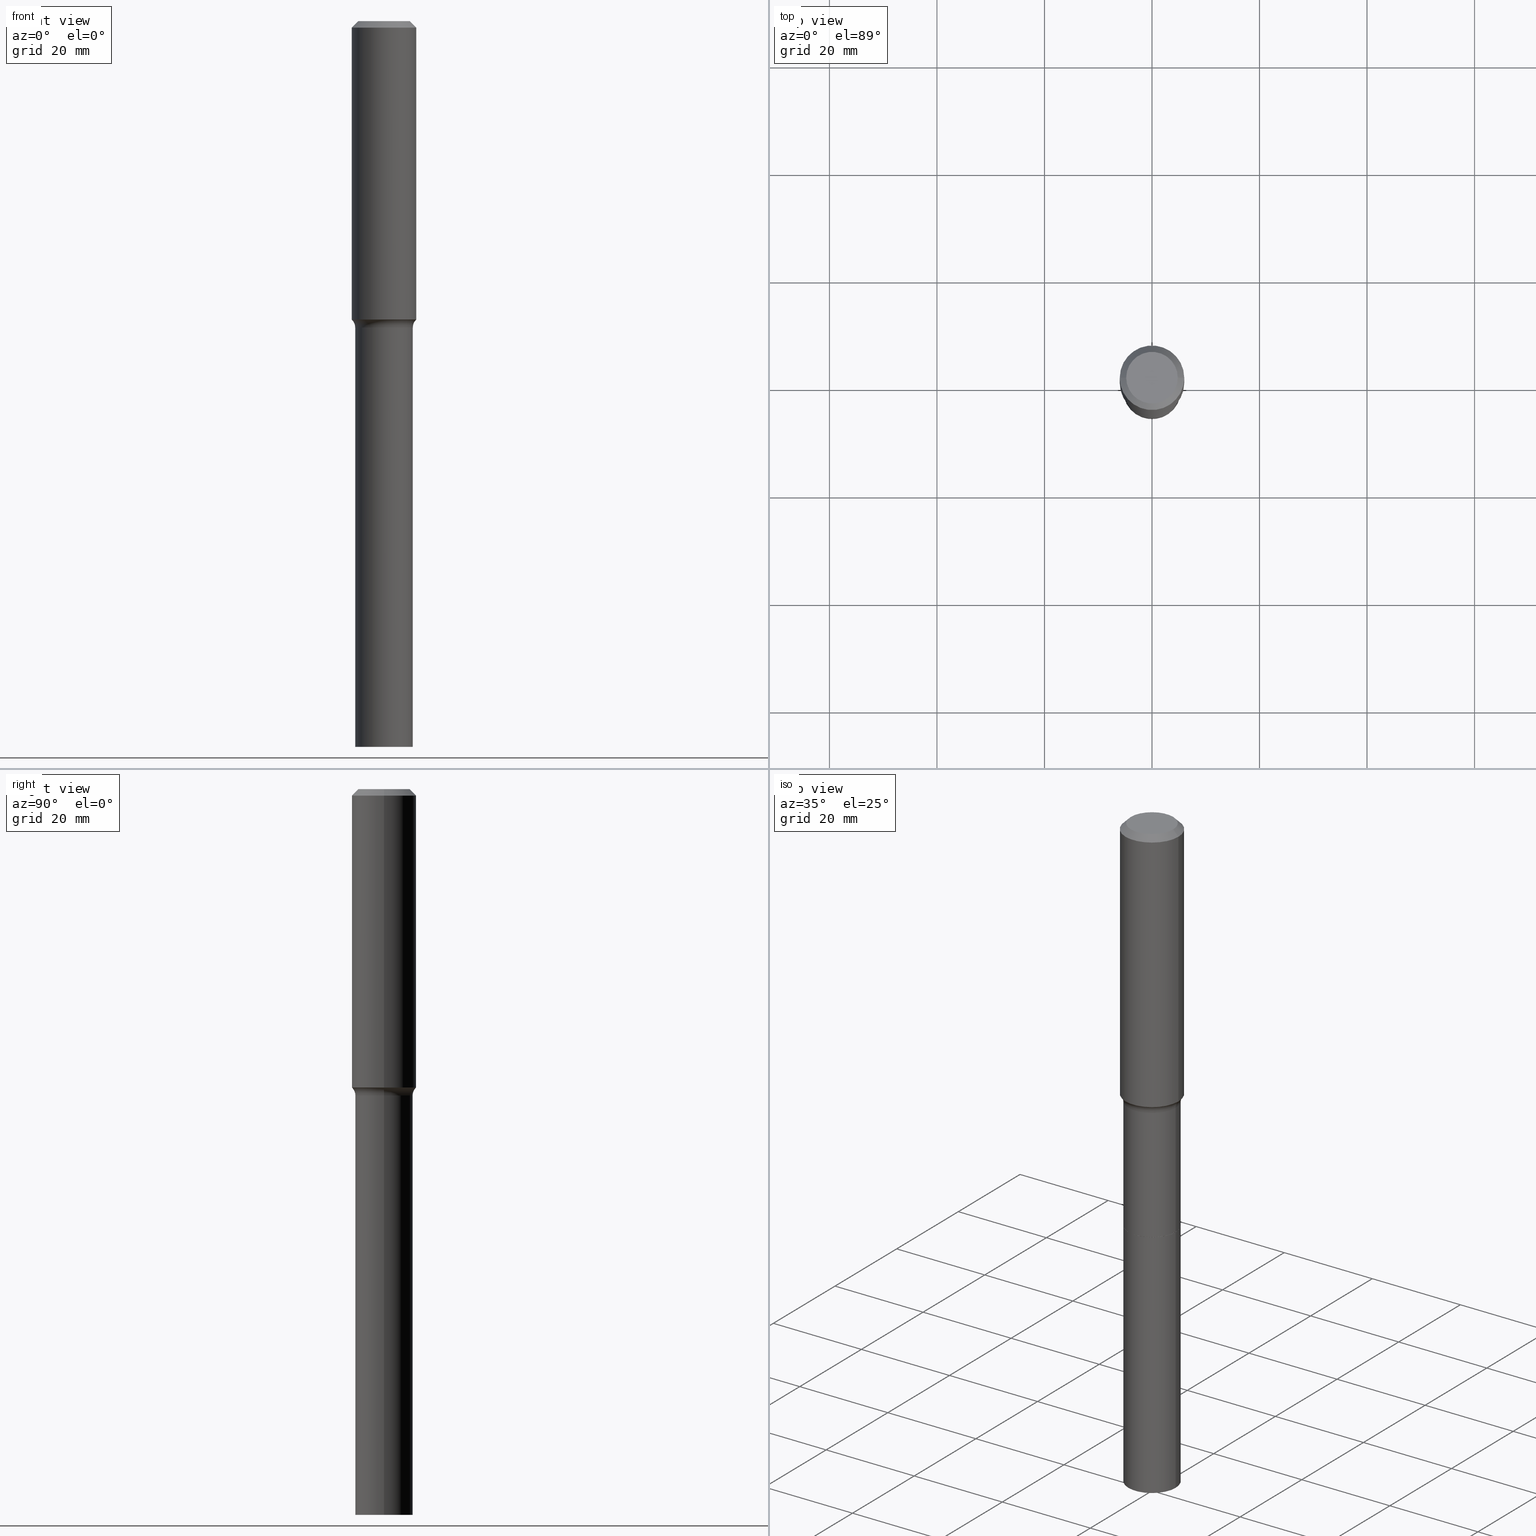
[diagram: canonical four-view strip — front | top / right | iso, engineering-drawing reading convention]
A machine part, canonical four-view strip (front | top / right | iso — engineering-drawing reading convention). The complete STEP part file that produces these views, byte-faithful:
ISO-10303-21;
HEADER;
FILE_DESCRIPTION (( 'STEP AP203' ),
    '1' );
FILE_NAME ('58906.STEP',
    '2025-04-01T15:26:47',
    ( '' ),
    ( '' ),
    'SwSTEP 2.0',
    'SolidWorks 2024',
    '' );
FILE_SCHEMA (( 'CONFIG_CONTROL_DESIGN' ));
ENDSEC;

DATA;
#1 = VERTEX_POINT ( 'NONE', #152 ) ;
#2 = DIRECTION ( 'NONE',  ( 2.445468806185136597E-29, -3.491481338843145583E-15, -1.000000000000000000 ) ) ;
#3 = DIRECTION ( 'NONE',  ( -1.000000000000000000, 6.982962677686266711E-15, 0.000000000000000000 ) ) ;
#4 = PRODUCT_DEFINITION_SHAPE ( 'NONE', 'NONE',  #20 ) ;
#5 = ADVANCED_FACE ( 'NONE', ( #112 ), #422, .F. ) ;
#6 = VERTEX_POINT ( 'NONE', #273 ) ;
#7 = EDGE_CURVE ( 'NONE', #82, #421, #455, .T. ) ;
#8 = CIRCLE ( 'NONE', #137, 0.2104499999999999982 ) ;
#9 = APPROVAL_ROLE ( '' ) ;
#10 = DATE_AND_TIME ( #134, #444 ) ;
#11 = CARTESIAN_POINT ( 'NONE',  ( -0.2361999999999999933, 1.484438206022545019E-15, -0.04724000000000028870 ) ) ;
#12 = CALENDAR_DATE ( 2025, 1, 4 ) ;
#13 = AXIS2_PLACEMENT_3D ( 'NONE', #364, #222, #374 ) ;
#14 = CIRCLE ( 'NONE', #376, 0.2361999999999999933 ) ;
#15 = CARTESIAN_POINT ( 'NONE',  ( 7.942882682489324976E-29, -1.134033138856253841E-14, -3.248000000000000220 ) ) ;
#16 = ORIENTED_EDGE ( 'NONE', *, *, #288, .T. ) ;
#17 = PERSON_AND_ORGANIZATION_ROLE ( 'design_owner' ) ;
#18 = CARTESIAN_POINT ( 'NONE',  ( -4.713871149261273121E-47, 6.730158695841826722E-33, 1.927594061857931128E-18 ) ) ;
#19 = APPROVAL_PERSON_ORGANIZATION ( #407, #357, #330 ) ;
#20 = PRODUCT_DEFINITION ( 'UNKNOWN', '', #401, #135 ) ;
#21 = ADVANCED_FACE ( 'NONE', ( #205 ), #303, .T. ) ;
#22 = CARTESIAN_POINT ( 'NONE',  ( 5.354207543847266757E-29, -7.644389360581631556E-15, -2.189440131195000472 ) ) ;
#23 = EDGE_CURVE ( 'NONE', #517, #156, #272, .T. ) ;
#24 = CARTESIAN_POINT ( 'NONE',  ( 0.1889600000000000168, -1.540873453589747738E-15, 3.855188123725863225E-18 ) ) ;
#25 = CIRCLE ( 'NONE', #256, 0.2109500000000003594 ) ;
#26 = FACE_OUTER_BOUND ( 'NONE', #264, .T. ) ;
#27 = DIRECTION ( 'NONE',  ( 1.000000000000000000, -6.982962677686270655E-15, 0.000000000000000000 ) ) ;
#28 = LOCAL_TIME ( 11, 26, 47.00000000000000000, #373 ) ;
#29 = DIRECTION ( 'NONE',  ( 1.000000000000000000, -6.982962677686266711E-15, 4.876176775795935793E-29 ) ) ;
#30 = VERTEX_POINT ( 'NONE', #86 ) ;
#31 = DIRECTION ( 'NONE',  ( -2.445468806185136597E-29, 3.491481338843145583E-15, 1.000000000000000000 ) ) ;
#32 = CARTESIAN_POINT ( 'NONE',  ( 1.155239464041865682E-30, -1.649375784469512105E-16, -0.04724000000000028870 ) ) ;
#33 = ORIENTED_EDGE ( 'NONE', *, *, #252, .F. ) ;
#34 = DIRECTION ( 'NONE',  ( 1.000000000000000000, -6.982962677686266711E-15, 0.000000000000000000 ) ) ;
#35 = DIRECTION ( 'NONE',  ( 1.000000000000000000, -6.982962677686266711E-15, 4.876176775795935793E-29 ) ) ;
#36 = AXIS2_PLACEMENT_3D ( 'NONE', #503, #307, #291 ) ;
#37 = EDGE_LOOP ( 'NONE', ( #103, #220, #493, #448 ) ) ;
#38 = APPROVAL_ROLE ( '' ) ;
#39 = DIRECTION ( 'NONE',  ( -2.445468806185136597E-29, 3.491481338843145583E-15, 1.000000000000000000 ) ) ;
#40 = CARTESIAN_POINT ( 'NONE',  ( 0.2109499999999998598, -9.307940101221936393E-15, -2.244000000000000217 ) ) ;
#41 = TOROIDAL_SURFACE ( 'NONE', #128, 0.2909499999999998754, 0.08000000000000002942 ) ;
#42 = CARTESIAN_POINT ( 'NONE',  ( 5.487632001079447088E-29, -7.834884124364020406E-15, -2.244000000000000217 ) ) ;
#43 = LOCAL_TIME ( 11, 26, 47.00000000000000000, #300 ) ;
#44 = ADVANCED_FACE ( 'NONE', ( #155 ), #347, .T. ) ;
#45 = EDGE_LOOP ( 'NONE', ( #289, #317, #212, #431 ) ) ;
#46 = CARTESIAN_POINT ( 'NONE',  ( 5.344351621851142965E-29, -7.630317716061153724E-15, -2.185409852022681676 ) ) ;
#47 = EDGE_LOOP ( 'NONE', ( #169, #217 ) ) ;
#48 = CIRCLE ( 'NONE', #339, 0.2362000000000002709 ) ;
#49 = DIRECTION ( 'NONE',  ( -0.6819983600624854869, 7.399397606724237667E-15, 0.7313537016191825613 ) ) ;
#50 =( NAMED_UNIT ( * ) SI_UNIT ( $, .STERADIAN. ) SOLID_ANGLE_UNIT ( ) );
#51 = VERTEX_POINT ( 'NONE', #356 ) ;
#52 = MANIFOLD_SOLID_BREP ( 'Body-Move/Copy2[2]', #213 ) ;
#53 = PERSON_AND_ORGANIZATION ( #150, #305 ) ;
#54 = ORIENTED_EDGE ( 'NONE', *, *, #318, .T. ) ;
#55 = CYLINDRICAL_SURFACE ( 'NONE', #260, 0.2109500000000001652 ) ;
#56 = DIRECTION ( 'NONE',  ( -2.445468806185136877E-29, 3.491481338843145188E-15, 1.000000000000000000 ) ) ;
#57 = VECTOR ( 'NONE', #188, 39.37007874015748143 ) ;
#58 = MECHANICAL_CONTEXT ( 'NONE', #93, 'mechanical' ) ;
#59 = AXIS2_PLACEMENT_3D ( 'NONE', #335, #296, #186 ) ;
#60 = EDGE_CURVE ( 'NONE', #1, #123, #309, .T. ) ;
#61 = EDGE_CURVE ( 'NONE', #518, #6, #338, .T. ) ;
#62 = DIRECTION ( 'NONE',  ( -2.445468806185136597E-29, 3.491481338843145583E-15, 1.000000000000000000 ) ) ;
#63 = CARTESIAN_POINT ( 'NONE',  ( -0.2324417038704665595, -5.992791718853027587E-15, -2.189440131195000472 ) ) ;
#64 = DIRECTION ( 'NONE',  ( 2.438088387897960049E-29, -3.491481338843145188E-15, -1.000000000000000000 ) ) ;
#65 = APPLICATION_CONTEXT ( 'configuration controlled 3d designs of mechanical parts and assemblies' ) ;
#66 = CONICAL_SURFACE ( 'NONE', #275, 0.2361999999999999933, 0.7853981633974452814 ) ;
#67 = ADVANCED_FACE ( 'NONE', ( #248 ), #462, .T. ) ;
#68 = CARTESIAN_POINT ( 'NONE',  ( 0.2109499999999999986, -1.281338736542045598E-14, -3.248000000000000220 ) ) ;
#69 = ORIENTED_EDGE ( 'NONE', *, *, #359, .T. ) ;
#70 = DIRECTION ( 'NONE',  ( -2.445468806185136597E-29, 3.491481338843145583E-15, 1.000000000000000000 ) ) ;
#71 = APPROVAL_PERSON_ORGANIZATION ( #392, #445, #38 ) ;
#72 = CARTESIAN_POINT ( 'NONE',  ( 7.941659948086232174E-29, -1.133858564789311612E-14, -3.247500000000000053 ) ) ;
#73 = PRODUCT_RELATED_PRODUCT_CATEGORY ( 'detail', '', ( #76 ) ) ;
#74 = CARTESIAN_POINT ( 'NONE',  ( 7.942882682489324976E-29, -1.134033138856253841E-14, -3.248000000000000220 ) ) ;
#75 = VERTEX_POINT ( 'NONE', #68 ) ;
#76 = PRODUCT ( '58906', '58906', '', ( #58 ) ) ;
#77 = DIRECTION ( 'NONE',  ( 1.000000000000000000, -6.982962677686266711E-15, 4.876176775795936353E-29 ) ) ;
#78 = VERTEX_POINT ( 'NONE', #63 ) ;
#79 = DATE_TIME_ROLE ( 'classification_date' ) ;
#80 = TOROIDAL_SURFACE ( 'NONE', #411, 0.2909499999999998754, 0.08000000000000002942 ) ;
#81 = ORIENTED_EDGE ( 'NONE', *, *, #353, .F. ) ;
#82 = VERTEX_POINT ( 'NONE', #24 ) ;
#83 = APPROVAL_DATE_TIME ( #312, #445 ) ;
#84 = DIRECTION ( 'NONE',  ( -2.445468806185136877E-29, 3.491481338843145188E-15, 1.000000000000000000 ) ) ;
#85 = ORIENTED_EDGE ( 'NONE', *, *, #424, .F. ) ;
#86 = CARTESIAN_POINT ( 'NONE',  ( 0.2109500000000003594, -2.003027929280924361E-14, -5.315000000000000391 ) ) ;
#87 = CC_DESIGN_PERSON_AND_ORGANIZATION_ASSIGNMENT ( #53, #224, ( #401 ) ) ;
#88 = AXIS2_PLACEMENT_3D ( 'NONE', #191, #507, #29 ) ;
#89 = ADVANCED_FACE ( 'NONE', ( #321 ), #390, .F. ) ;
#90 = DIRECTION ( 'NONE',  ( -2.445468806185136597E-29, 3.491481338843145583E-15, 1.000000000000000000 ) ) ;
#91 = DIRECTION ( 'NONE',  ( -2.445468806185136597E-29, 3.491481338843145583E-15, 1.000000000000000000 ) ) ;
#92 = AXIS2_PLACEMENT_3D ( 'NONE', #22, #419, #271 ) ;
#93 = APPLICATION_CONTEXT ( 'configuration controlled 3d designs of mechanical parts and assemblies' ) ;
#94 = VERTEX_POINT ( 'NONE', #420 ) ;
#95 =( CONVERSION_BASED_UNIT ( 'INCH', #447 ) LENGTH_UNIT ( ) NAMED_UNIT ( #298 ) );
#96 = AXIS2_PLACEMENT_3D ( 'NONE', #15, #255, #177 ) ;
#97 = ORIENTED_EDGE ( 'NONE', *, *, #124, .T. ) ;
#98 = LOCAL_TIME ( 11, 26, 47.00000000000000000, #142 ) ;
#99 = DIRECTION ( 'NONE',  ( -6.982962677686266711E-15, -1.000000000000000000, 3.491481338843145583E-15 ) ) ;
#100 = ORIENTED_EDGE ( 'NONE', *, *, #438, .T. ) ;
#101 = PERSON_AND_ORGANIZATION_ROLE ( 'creator' ) ;
#102 = EDGE_LOOP ( 'NONE', ( #326, #388, #280, #471 ) ) ;
#103 = ORIENTED_EDGE ( 'NONE', *, *, #7, .F. ) ;
#104 = DIRECTION ( 'NONE',  ( 1.000000000000000000, -6.982962677686269077E-15, 0.000000000000000000 ) ) ;
#105 = CALENDAR_DATE ( 2025, 1, 4 ) ;
#106 = ADVANCED_FACE ( 'NONE', ( #26 ), #240, .T. ) ;
#107 = EDGE_CURVE ( 'NONE', #197, #259, #14, .T. ) ;
#108 = VECTOR ( 'NONE', #394, 39.37007874015748143 ) ;
#109 = FACE_OUTER_BOUND ( 'NONE', #45, .T. ) ;
#110 = AXIS2_PLACEMENT_3D ( 'NONE', #341, #153, #27 ) ;
#111 = DIRECTION ( 'NONE',  ( 1.000000000000000000, -6.982962677686266711E-15, 0.000000000000000000 ) ) ;
#112 = FACE_OUTER_BOUND ( 'NONE', #47, .T. ) ;
#113 = AXIS2_PLACEMENT_3D ( 'NONE', #122, #70, #472 ) ;
#114 = DIRECTION ( 'NONE',  ( 1.000000000000000000, -6.982962677686266711E-15, 4.876176775795936353E-29 ) ) ;
#115 = DIRECTION ( 'NONE',  ( -1.000000000000000000, 6.982962677686265922E-15, -4.876176775795935793E-29 ) ) ;
#116 = AXIS2_PLACEMENT_3D ( 'NONE', #285, #458, #115 ) ;
#117 = CARTESIAN_POINT ( 'NONE',  ( -0.1889600000000000168, 1.401969416799070942E-15, 3.855188123706346622E-18 ) ) ;
#118 = DIRECTION ( 'NONE',  ( -0.7071067811864267805, 7.493145998869918709E-15, 0.7071067811866682540 ) ) ;
#119 = ORIENTED_EDGE ( 'NONE', *, *, #429, .T. ) ;
#120 = DIRECTION ( 'NONE',  ( -2.445468806185136597E-29, 3.491481338843145583E-15, 1.000000000000000000 ) ) ;
#121 = ORIENTED_EDGE ( 'NONE', *, *, #254, .T. ) ;
#122 = CARTESIAN_POINT ( 'NONE',  ( 5.354207543847266757E-29, -7.644389360581631556E-15, -2.189440131195000472 ) ) ;
#123 = VERTEX_POINT ( 'NONE', #40 ) ;
#124 = EDGE_CURVE ( 'NONE', #421, #82, #158, .T. ) ;
#125 = ADVANCED_FACE ( 'NONE', ( #196 ), #268, .T. ) ;
#126 = ORIENTED_EDGE ( 'NONE', *, *, #143, .T. ) ;
#127 = AXIS2_PLACEMENT_3D ( 'NONE', #278, #415, #3 ) ;
#128 = AXIS2_PLACEMENT_3D ( 'NONE', #489, #478, #244 ) ;
#129 = ORIENTED_EDGE ( 'NONE', *, *, #165, .F. ) ;
#130 = CARTESIAN_POINT ( 'NONE',  ( -0.2909499999999998754, -5.767560034670008617E-15, -2.244000000000000217 ) ) ;
#131 = CARTESIAN_POINT ( 'NONE',  ( 0.2361999999999999933, -1.785387205520586782E-15, -0.04724000000000028870 ) ) ;
#132 = CARTESIAN_POINT ( 'NONE',  ( 5.344351621851142965E-29, -7.630317716061153724E-15, -2.185409852022681676 ) ) ;
#133 = SECURITY_CLASSIFICATION ( '', '', #377 ) ;
#134 = CALENDAR_DATE ( 2025, 1, 4 ) ;
#135 = DESIGN_CONTEXT ( 'detailed design', #65, 'design' ) ;
#136 = APPROVAL_DATE_TIME ( #10, #297 ) ;
#137 = AXIS2_PLACEMENT_3D ( 'NONE', #360, #245, #322 ) ;
#138 = CLOSED_SHELL ( 'NONE', ( #486, #199, #504, #5 ) ) ;
#139 = EDGE_LOOP ( 'NONE', ( #223, #365, #452, #274 ) ) ;
#140 = PERSON_AND_ORGANIZATION ( #150, #305 ) ;
#141 = EDGE_CURVE ( 'NONE', #82, #259, #279, .T. ) ;
#142 = COORDINATED_UNIVERSAL_TIME_OFFSET ( 5, 0, .BEHIND. ) ;
#143 = EDGE_CURVE ( 'NONE', #30, #194, #242, .T. ) ;
#144 = CARTESIAN_POINT ( 'NONE',  ( -0.2109499999999998598, -8.087844985042637127E-15, -2.244000000000000217 ) ) ;
#145 = DIRECTION ( 'NONE',  ( -1.000000000000000000, 6.982962677686265922E-15, -4.876176775795935793E-29 ) ) ;
#146 = VECTOR ( 'NONE', #56, 39.37007874015748143 ) ;
#147 = CYLINDRICAL_SURFACE ( 'NONE', #495, 0.2109499999999999431 ) ;
#148 = DIRECTION ( 'NONE',  ( -2.445468806185136597E-29, 3.491481338843145583E-15, 1.000000000000000000 ) ) ;
#149 = CARTESIAN_POINT ( 'NONE',  ( 7.942882682489324976E-29, -1.134033138856253841E-14, -3.248000000000000220 ) ) ;
#150 = PERSON ( 'UNSPECIFIED', 'UNSPECIFIED', 'UNSPECIFIED', ('UNSPECIFIED'), ('UNSPECIFIED'), ('UNSPECIFIED') ) ;
#151 = CARTESIAN_POINT ( 'NONE',  ( 7.942882682489324976E-29, -1.134033138856253841E-14, -3.248000000000000220 ) ) ;
#152 = CARTESIAN_POINT ( 'NONE',  ( 0.2109499999999999986, -1.281164162475103368E-14, -3.247500000000000053 ) ) ;
#153 = DIRECTION ( 'NONE',  ( -2.445468806185136597E-29, 3.491481338843145583E-15, 1.000000000000000000 ) ) ;
#154 = CARTESIAN_POINT ( 'NONE',  ( 0.000000000000000000, 0.000000000000000000, 0.000000000000000000 ) ) ;
#155 = FACE_OUTER_BOUND ( 'NONE', #423, .T. ) ;
#156 = VERTEX_POINT ( 'NONE', #487 ) ;
#157 = FACE_OUTER_BOUND ( 'NONE', #316, .T. ) ;
#158 = CIRCLE ( 'NONE', #434, 0.1889600000000000168 ) ;
#159 = DIRECTION ( 'NONE',  ( -2.445468806185136597E-29, 3.491481338843145583E-15, 1.000000000000000000 ) ) ;
#160 = CARTESIAN_POINT ( 'NONE',  ( 5.354207543847266757E-29, -7.644389360581631556E-15, -2.189440131195000472 ) ) ;
#161 = CARTESIAN_POINT ( 'NONE',  ( -0.2109500000000001652, -9.841441487476605698E-15, -3.248000000000000220 ) ) ;
#162 = AXIS2_PLACEMENT_3D ( 'NONE', #425, #457, #111 ) ;
#163 = CC_DESIGN_PERSON_AND_ORGANIZATION_ASSIGNMENT ( #179, #263, ( #20 ) ) ;
#164 = LINE ( 'NONE', #337, #386 ) ;
#165 = EDGE_CURVE ( 'NONE', #517, #123, #476, .T. ) ;
#166 = ORIENTED_EDGE ( 'NONE', *, *, #336, .F. ) ;
#167 = EDGE_CURVE ( 'NONE', #421, #197, #287, .T. ) ;
#168 = DATE_AND_TIME ( #105, #98 ) ;
#169 = ORIENTED_EDGE ( 'NONE', *, *, #469, .T. ) ;
#170 = DIRECTION ( 'NONE',  ( -2.445468806185136597E-29, 3.491481338843145583E-15, 1.000000000000000000 ) ) ;
#171 = CIRCLE ( 'NONE', #505, 0.2109499999999998598 ) ;
#172 = DIRECTION ( 'NONE',  ( -2.445468806185136877E-29, 3.491481338843145188E-15, 1.000000000000000000 ) ) ;
#173 = CC_DESIGN_PERSON_AND_ORGANIZATION_ASSIGNMENT ( #332, #497, ( #133 ) ) ;
#174 = CARTESIAN_POINT ( 'NONE',  ( -0.2362000000000001321, 1.678301941865357577E-15, -1.161852468318209457E-29 ) ) ;
#175 = ORIENTED_EDGE ( 'NONE', *, *, #23, .T. ) ;
#176 = CARTESIAN_POINT ( 'NONE',  ( -0.2361999999999999933, -2.219325705388693953E-15, -0.04724000000000028870 ) ) ;
#177 = DIRECTION ( 'NONE',  ( 1.000000000000000000, -6.982962677686266711E-15, 0.000000000000000000 ) ) ;
#178 = FACE_OUTER_BOUND ( 'NONE', #257, .T. ) ;
#179 = PERSON_AND_ORGANIZATION ( #150, #305 ) ;
#180 = APPROVAL_STATUS ( 'not_yet_approved' ) ;
#181 = ORIENTED_EDGE ( 'NONE', *, *, #318, .F. ) ;
#182 = PERSON_AND_ORGANIZATION ( #150, #305 ) ;
#183 = VECTOR ( 'NONE', #118, 39.37007874015748143 ) ;
#184 = ADVANCED_FACE ( 'NONE', ( #295 ), #80, .F. ) ;
#185 = AXIS2_PLACEMENT_3D ( 'NONE', #72, #159, #239 ) ;
#186 = DIRECTION ( 'NONE',  ( 1.000000000000000000, 0.000000000000000000, 0.000000000000000000 ) ) ;
#187 = CARTESIAN_POINT ( 'NONE',  ( 0.2109500000000001652, -1.281338736542045913E-14, -3.248000000000000220 ) ) ;
#188 = DIRECTION ( 'NONE',  ( 0.7071067811865453523, -7.319954787623248157E-15, -0.7071067811865496822 ) ) ;
#189 = DIRECTION ( 'NONE',  ( -2.445468806185136597E-29, 3.491481338843145583E-15, 1.000000000000000000 ) ) ;
#190 = AXIS2_PLACEMENT_3D ( 'NONE', #130, #328, #283 ) ;
#191 = CARTESIAN_POINT ( 'NONE',  ( 0.000000000000000000, 0.000000000000000000, 0.000000000000000000 ) ) ;
#192 = CYLINDRICAL_SURFACE ( 'NONE', #110, 0.2109500000000001652 ) ;
#193 = DIRECTION ( 'NONE',  ( 1.000000000000000000, -6.982962677686266711E-15, 0.000000000000000000 ) ) ;
#194 = VERTEX_POINT ( 'NONE', #441 ) ;
#195 = DIRECTION ( 'NONE',  ( 1.000000000000000000, -6.982962677686269077E-15, 0.000000000000000000 ) ) ;
#196 = FACE_OUTER_BOUND ( 'NONE', #440, .T. ) ;
#197 = VERTEX_POINT ( 'NONE', #176 ) ;
#198 = VECTOR ( 'NONE', #172, 39.37007874015748143 ) ;
#199 = ADVANCED_FACE ( 'NONE', ( #250 ), #209, .T. ) ;
#200 = EDGE_CURVE ( 'NONE', #51, #75, #325, .T. ) ;
#201 = ORIENTED_EDGE ( 'NONE', *, *, #408, .F. ) ;
#202 = ORIENTED_EDGE ( 'NONE', *, *, #277, .F. ) ;
#203 = CONICAL_SURFACE ( 'NONE', #113, 0.2324417038704666982, 0.7504915783575439869 ) ;
#204 = SHAPE_DEFINITION_REPRESENTATION ( #4, #473 ) ;
#205 = FACE_OUTER_BOUND ( 'NONE', #139, .T. ) ;
#206 = LINE ( 'NONE', #208, #225 ) ;
#207 = DIRECTION ( 'NONE',  ( 1.000000000000000000, -6.982962677686257244E-15, 0.000000000000000000 ) ) ;
#208 = CARTESIAN_POINT ( 'NONE',  ( -0.2324417038704666982, -5.992791718853027587E-15, -2.189440131195000472 ) ) ;
#209 = PLANE ( 'NONE',  #13 ) ;
#210 = ORIENTED_EDGE ( 'NONE', *, *, #61, .T. ) ;
#211 = DIRECTION ( 'NONE',  ( 1.000000000000000000, -6.982962677686265133E-15, 0.000000000000000000 ) ) ;
#212 = ORIENTED_EDGE ( 'NONE', *, *, #424, .T. ) ;
#213 = CLOSED_SHELL ( 'NONE', ( #67, #238, #44, #380, #324, #106, #446, #184, #125, #439, #21, #492, #89, #484 ) ) ;
#214 = EDGE_CURVE ( 'NONE', #78, #94, #206, .T. ) ;
#215 = CIRCLE ( 'NONE', #491, 0.2109499999999999986 ) ;
#216 = FACE_OUTER_BOUND ( 'NONE', #37, .T. ) ;
#217 = ORIENTED_EDGE ( 'NONE', *, *, #200, .T. ) ;
#218 = AXIS2_PLACEMENT_3D ( 'NONE', #18, #64, #145 ) ;
#219 = APPROVAL_STATUS ( 'not_yet_approved' ) ;
#220 = ORIENTED_EDGE ( 'NONE', *, *, #141, .T. ) ;
#221 = LINE ( 'NONE', #227, #266 ) ;
#222 = DIRECTION ( 'NONE',  ( 2.438088387897960049E-29, -3.491481338843145188E-15, -1.000000000000000000 ) ) ;
#223 = ORIENTED_EDGE ( 'NONE', *, *, #141, .F. ) ;
#224 = PERSON_AND_ORGANIZATION_ROLE ( 'design_supplier' ) ;
#225 = VECTOR ( 'NONE', #49, 39.37007874015748143 ) ;
#226 = DIRECTION ( 'NONE',  ( -2.445468806185136597E-29, 3.491481338843145583E-15, 1.000000000000000000 ) ) ;
#227 = CARTESIAN_POINT ( 'NONE',  ( 0.2362000000000001321, -1.649375784469497117E-15, 1.151752954443000789E-29 ) ) ;
#228 = EDGE_CURVE ( 'NONE', #94, #156, #454, .T. ) ;
#229 = DIRECTION ( 'NONE',  ( -2.445468806185136597E-29, 3.491481338843145583E-15, 1.000000000000000000 ) ) ;
#230 = CARTESIAN_POINT ( 'NONE',  ( 0.000000000000000000, 0.000000000000000000, 0.000000000000000000 ) ) ;
#231 = EDGE_LOOP ( 'NONE', ( #237, #166 ) ) ;
#232 = AXIS2_PLACEMENT_3D ( 'NONE', #154, #31, #114 ) ;
#233 = CARTESIAN_POINT ( 'NONE',  ( 5.487632001079447088E-29, -7.834884124364020406E-15, -2.244000000000000217 ) ) ;
#234 = MANIFOLD_SOLID_BREP ( 'Body-Move/Copy2[1]', #138 ) ;
#235 = LINE ( 'NONE', #187, #299 ) ;
#236 = CARTESIAN_POINT ( 'NONE',  ( -9.427742298522546243E-47, 1.346031739168365344E-32, 3.855188123715862256E-18 ) ) ;
#237 = ORIENTED_EDGE ( 'NONE', *, *, #143, .F. ) ;
#238 = ADVANCED_FACE ( 'NONE', ( #216 ), #66, .T. ) ;
#239 = DIRECTION ( 'NONE',  ( 1.000000000000000000, -6.982962677686266711E-15, 0.000000000000000000 ) ) ;
#240 = CYLINDRICAL_SURFACE ( 'NONE', #88, 0.2109499999999999431 ) ;
#241 = ORIENTED_EDGE ( 'NONE', *, *, #396, .T. ) ;
#242 = CIRCLE ( 'NONE', #36, 0.2109500000000003594 ) ;
#243 = VECTOR ( 'NONE', #398, 39.37007874015748143 ) ;
#244 = DIRECTION ( 'NONE',  ( 1.000000000000000000, -6.982962677686268288E-15, 4.883557194083114022E-29 ) ) ;
#245 = DIRECTION ( 'NONE',  ( -2.445468806185136597E-29, 3.491481338843145583E-15, 1.000000000000000000 ) ) ;
#246 = CIRCLE ( 'NONE', #162, 0.2361999999999999933 ) ;
#247 = AXIS2_PLACEMENT_3D ( 'NONE', #387, #120, #343 ) ;
#248 = FACE_OUTER_BOUND ( 'NONE', #314, .T. ) ;
#249 =( GEOMETRIC_REPRESENTATION_CONTEXT ( 3 ) GLOBAL_UNCERTAINTY_ASSIGNED_CONTEXT ( ( #329 ) ) GLOBAL_UNIT_ASSIGNED_CONTEXT ( ( #95, #412, #50 ) ) REPRESENTATION_CONTEXT ( 'NONE', 'WORKASPACE' ) );
#250 = FACE_OUTER_BOUND ( 'NONE', #231, .T. ) ;
#251 = CC_DESIGN_PERSON_AND_ORGANIZATION_ASSIGNMENT ( #182, #17, ( #76 ) ) ;
#252 = EDGE_CURVE ( 'NONE', #451, #518, #8, .T. ) ;
#253 = CARTESIAN_POINT ( 'NONE',  ( 5.354207543847266757E-29, -7.644389360581631556E-15, -2.189440131195000472 ) ) ;
#254 = EDGE_CURVE ( 'NONE', #1, #6, #215, .T. ) ;
#255 = DIRECTION ( 'NONE',  ( -2.445468806185136597E-29, 3.491481338843145583E-15, 1.000000000000000000 ) ) ;
#256 = AXIS2_PLACEMENT_3D ( 'NONE', #399, #500, #443 ) ;
#257 = EDGE_LOOP ( 'NONE', ( #202, #512, #100, #129 ) ) ;
#258 = VECTOR ( 'NONE', #84, 39.37007874015748143 ) ;
#259 = VERTEX_POINT ( 'NONE', #320 ) ;
#260 = AXIS2_PLACEMENT_3D ( 'NONE', #149, #226, #379 ) ;
#261 = DATE_AND_TIME ( #490, #43 ) ;
#262 = ORIENTED_EDGE ( 'NONE', *, *, #469, .F. ) ;
#263 = PERSON_AND_ORGANIZATION_ROLE ( 'creator' ) ;
#264 = EDGE_LOOP ( 'NONE', ( #121, #69, #395, #378 ) ) ;
#265 =( LENGTH_UNIT ( ) NAMED_UNIT ( * ) SI_UNIT ( $, .METRE. ) );
#266 = VECTOR ( 'NONE', #302, 39.37007874015748143 ) ;
#267 = VECTOR ( 'NONE', #362, 39.37007874015748143 ) ;
#268 = CONICAL_SURFACE ( 'NONE', #453, 0.2324417038704666982, 0.7504915783575439869 ) ;
#269 = LOCAL_TIME ( 11, 26, 47.00000000000000000, #355 ) ;
#270 = APPLICATION_PROTOCOL_DEFINITION ( 'international standard', 'config_control_design', 1994, #65 ) ;
#271 = DIRECTION ( 'NONE',  ( 1.000000000000000000, -6.982962677686267499E-15, 0.000000000000000000 ) ) ;
#272 = LINE ( 'NONE', #510, #108 ) ;
#273 = CARTESIAN_POINT ( 'NONE',  ( -0.2109499999999999709, -8.087844985042637127E-15, -3.247500000000000053 ) ) ;
#274 = ORIENTED_EDGE ( 'NONE', *, *, #107, .T. ) ;
#275 = AXIS2_PLACEMENT_3D ( 'NONE', #363, #2, #436 ) ;
#276 = CC_DESIGN_DATE_AND_TIME_ASSIGNMENT ( #168, #79, ( #133 ) ) ;
#277 = EDGE_CURVE ( 'NONE', #78, #517, #501, .T. ) ;
#278 = CARTESIAN_POINT ( 'NONE',  ( 1.155239464041865682E-30, -1.649375784469512105E-16, -0.04724000000000028870 ) ) ;
#279 = LINE ( 'NONE', #131, #57 ) ;
#280 = ORIENTED_EDGE ( 'NONE', *, *, #165, .T. ) ;
#281 = AXIS2_PLACEMENT_3D ( 'NONE', #253, #39, #368 ) ;
#282 = EDGE_LOOP ( 'NONE', ( #293, #372, #449, #327 ) ) ;
#283 = DIRECTION ( 'NONE',  ( -1.000000000000000000, 7.105427357600995548E-15, 0.000000000000000000 ) ) ;
#284 = AXIS2_PLACEMENT_3D ( 'NONE', #233, #349, #34 ) ;
#285 = CARTESIAN_POINT ( 'NONE',  ( 7.942882682489324976E-29, -1.134033138856253841E-14, -3.248000000000000220 ) ) ;
#286 = CARTESIAN_POINT ( 'NONE',  ( 7.941659948086232174E-29, -1.133858564789311612E-14, -3.247500000000000053 ) ) ;
#287 = LINE ( 'NONE', #11, #267 ) ;
#288 = EDGE_CURVE ( 'NONE', #94, #197, #403, .T. ) ;
#289 = ORIENTED_EDGE ( 'NONE', *, *, #396, .F. ) ;
#290 = DIRECTION ( 'NONE',  ( 1.000000000000000000, -6.982962677686265133E-15, 0.000000000000000000 ) ) ;
#291 = DIRECTION ( 'NONE',  ( 1.000000000000000000, -6.982962677686273810E-15, 0.000000000000000000 ) ) ;
#292 = ORIENTED_EDGE ( 'NONE', *, *, #23, .F. ) ;
#293 = ORIENTED_EDGE ( 'NONE', *, *, #359, .F. ) ;
#294 = ORIENTED_EDGE ( 'NONE', *, *, #353, .T. ) ;
#295 = FACE_OUTER_BOUND ( 'NONE', #102, .T. ) ;
#296 = DIRECTION ( 'NONE',  ( 0.000000000000000000, 0.000000000000000000, 1.000000000000000000 ) ) ;
#297 = APPROVAL ( #219, 'UNSPECIFIED' ) ;
#298 = DIMENSIONAL_EXPONENTS ( 1.000000000000000000, 0.000000000000000000, 0.000000000000000000, 0.000000000000000000, 0.000000000000000000, 0.000000000000000000, 0.000000000000000000 ) ;
#299 = VECTOR ( 'NONE', #506, 39.37007874015748143 ) ;
#300 = COORDINATED_UNIVERSAL_TIME_OFFSET ( 5, 0, .BEHIND. ) ;
#301 = ORIENTED_EDGE ( 'NONE', *, *, #254, .F. ) ;
#302 = DIRECTION ( 'NONE',  ( -2.445468806185136877E-29, 3.491481338843145188E-15, 1.000000000000000000 ) ) ;
#303 = CONICAL_SURFACE ( 'NONE', #127, 0.2361999999999999933, 0.7853981633974452814 ) ;
#304 = ORIENTED_EDGE ( 'NONE', *, *, #228, .F. ) ;
#305 = ORGANIZATION ( 'UNSPECIFIED', 'UNSPECIFIED', '' ) ;
#306 = DIRECTION ( 'NONE',  ( -2.445468806185136597E-29, 3.491481338843145583E-15, 1.000000000000000000 ) ) ;
#307 = DIRECTION ( 'NONE',  ( -2.445468806185136597E-29, 3.491481338843145583E-15, 1.000000000000000000 ) ) ;
#308 = FACE_OUTER_BOUND ( 'NONE', #475, .T. ) ;
#309 = LINE ( 'NONE', #511, #198 ) ;
#310 = CARTESIAN_POINT ( 'NONE',  ( -9.427742298522546243E-47, 1.346031739168365344E-32, 3.855188123715862256E-18 ) ) ;
#311 = AXIS2_PLACEMENT_3D ( 'NONE', #370, #99, #207 ) ;
#312 = DATE_AND_TIME ( #345, #269 ) ;
#313 = DIRECTION ( 'NONE',  ( -2.445468806185136597E-29, 3.491481338843145583E-15, 1.000000000000000000 ) ) ;
#314 = EDGE_LOOP ( 'NONE', ( #391, #210, #301, #402 ) ) ;
#315 = CIRCLE ( 'NONE', #92, 0.2324417038704666982 ) ;
#316 = EDGE_LOOP ( 'NONE', ( #516, #348, #181, #292 ) ) ;
#317 = ORIENTED_EDGE ( 'NONE', *, *, #336, .T. ) ;
#318 = EDGE_CURVE ( 'NONE', #156, #94, #48, .T. ) ;
#319 = CONICAL_SURFACE ( 'NONE', #465, 0.2104499999999999982, 0.7853981633972775267 ) ;
#320 = CARTESIAN_POINT ( 'NONE',  ( 0.2361999999999999933, -1.814313362916447440E-15, -0.04724000000000028870 ) ) ;
#321 = FACE_OUTER_BOUND ( 'NONE', #481, .T. ) ;
#322 = DIRECTION ( 'NONE',  ( 1.000000000000000000, -6.982962677686269077E-15, 0.000000000000000000 ) ) ;
#323 = CC_DESIGN_PERSON_AND_ORGANIZATION_ASSIGNMENT ( #140, #101, ( #401 ) ) ;
#324 = ADVANCED_FACE ( 'NONE', ( #178 ), #41, .F. ) ;
#325 = CIRCLE ( 'NONE', #96, 0.2109499999999999986 ) ;
#326 = ORIENTED_EDGE ( 'NONE', *, *, #334, .F. ) ;
#327 = ORIENTED_EDGE ( 'NONE', *, *, #438, .F. ) ;
#328 = DIRECTION ( 'NONE',  ( 7.105427357601001859E-15, 1.000000000000000000, -3.491481338843145583E-15 ) ) ;
#329 = UNCERTAINTY_MEASURE_WITH_UNIT (LENGTH_MEASURE( 1.000000000000000082E-05 ), #95, 'distance_accuracy_value', 'NONE');
#330 = APPROVAL_ROLE ( '' ) ;
#331 = DATE_AND_TIME ( #12, #28 ) ;
#332 = PERSON_AND_ORGANIZATION ( #150, #305 ) ;
#333 = ORIENTED_EDGE ( 'NONE', *, *, #466, .T. ) ;
#334 = EDGE_CURVE ( 'NONE', #78, #483, #405, .T. ) ;
#335 = CARTESIAN_POINT ( 'NONE',  ( 0.000000000000000000, 0.000000000000000000, 0.000000000000000000 ) ) ;
#336 = EDGE_CURVE ( 'NONE', #194, #30, #25, .T. ) ;
#337 = CARTESIAN_POINT ( 'NONE',  ( 0.2104499999999999982, -1.280989588408161455E-14, -3.248000000000000220 ) ) ;
#338 = LINE ( 'NONE', #417, #183 ) ;
#339 = AXIS2_PLACEMENT_3D ( 'NONE', #46, #170, #211 ) ;
#340 = DIRECTION ( 'NONE',  ( -2.445468806185136597E-29, 3.491481338843145583E-15, 1.000000000000000000 ) ) ;
#341 = CARTESIAN_POINT ( 'NONE',  ( 7.942882682489324976E-29, -1.134033138856253841E-14, -3.248000000000000220 ) ) ;
#342 = DIRECTION ( 'NONE',  ( -2.445468806185136597E-29, 3.491481338843145583E-15, 1.000000000000000000 ) ) ;
#343 = DIRECTION ( 'NONE',  ( 1.000000000000000000, -6.982962677686269077E-15, 0.000000000000000000 ) ) ;
#344 = ORIENTED_EDGE ( 'NONE', *, *, #228, .T. ) ;
#345 = CALENDAR_DATE ( 2025, 1, 4 ) ;
#346 = CARTESIAN_POINT ( 'NONE',  ( 0.000000000000000000, 0.000000000000000000, 0.000000000000000000 ) ) ;
#347 = CYLINDRICAL_SURFACE ( 'NONE', #482, 0.2362000000000001321 ) ;
#348 = ORIENTED_EDGE ( 'NONE', *, *, #214, .T. ) ;
#349 = DIRECTION ( 'NONE',  ( -2.445468806185136597E-29, 3.491481338843145583E-15, 1.000000000000000000 ) ) ;
#350 = DIRECTION ( 'NONE',  ( 1.000000000000000000, -6.982962677686266711E-15, 0.000000000000000000 ) ) ;
#351 = CC_DESIGN_APPROVAL ( #297, ( #20 ) ) ;
#352 = AXIS2_PLACEMENT_3D ( 'NONE', #502, #306, #413 ) ;
#353 = EDGE_CURVE ( 'NONE', #156, #259, #221, .T. ) ;
#354 = ORIENTED_EDGE ( 'NONE', *, *, #288, .F. ) ;
#355 = COORDINATED_UNIVERSAL_TIME_OFFSET ( 5, 0, .BEHIND. ) ;
#356 = CARTESIAN_POINT ( 'NONE',  ( -0.2109499999999999986, -1.344988745117099794E-14, -3.248000000000000220 ) ) ;
#357 = APPROVAL ( #180, 'UNSPECIFIED' ) ;
#358 = CC_DESIGN_SECURITY_CLASSIFICATION ( #133, ( #401 ) ) ;
#359 = EDGE_CURVE ( 'NONE', #6, #483, #450, .T. ) ;
#360 = CARTESIAN_POINT ( 'NONE',  ( 7.942882682489324976E-29, -1.134033138856253841E-14, -3.248000000000000220 ) ) ;
#361 = EDGE_LOOP ( 'NONE', ( #354, #344, #294, #468 ) ) ;
#362 = DIRECTION ( 'NONE',  ( -0.7071067811865453523, 2.468850131082234184E-15, -0.7071067811865496822 ) ) ;
#363 = CARTESIAN_POINT ( 'NONE',  ( 1.155239464041865682E-30, -1.649375784469512105E-16, -0.04724000000000028870 ) ) ;
#364 = CARTESIAN_POINT ( 'NONE',  ( 1.299766670487400218E-28, -1.855722331595131973E-14, -5.315000000000000391 ) ) ;
#365 = ORIENTED_EDGE ( 'NONE', *, *, #124, .F. ) ;
#366 = DIRECTION ( 'NONE',  ( 1.000000000000000000, -6.982962677686266711E-15, 0.000000000000000000 ) ) ;
#367 = ORIENTED_EDGE ( 'NONE', *, *, #7, .T. ) ;
#368 = DIRECTION ( 'NONE',  ( 1.000000000000000000, -6.982962677686267499E-15, 0.000000000000000000 ) ) ;
#369 = CC_DESIGN_APPROVAL ( #445, ( #133 ) ) ;
#370 = CARTESIAN_POINT ( 'NONE',  ( 0.2909499999999998754, -9.866577115436838045E-15, -2.244000000000000217 ) ) ;
#371 = COORDINATED_UNIVERSAL_TIME_OFFSET ( 5, 0, .BEHIND. ) ;
#372 = ORIENTED_EDGE ( 'NONE', *, *, #408, .T. ) ;
#373 = COORDINATED_UNIVERSAL_TIME_OFFSET ( 5, 0, .BEHIND. ) ;
#374 = DIRECTION ( 'NONE',  ( -1.000000000000000000, 6.982962677686265922E-15, -4.876176775795935793E-29 ) ) ;
#375 = ORIENTED_EDGE ( 'NONE', *, *, #406, .F. ) ;
#376 = AXIS2_PLACEMENT_3D ( 'NONE', #32, #340, #193 ) ;
#377 = SECURITY_CLASSIFICATION_LEVEL ( 'unclassified' ) ;
#378 = ORIENTED_EDGE ( 'NONE', *, *, #60, .F. ) ;
#379 = DIRECTION ( 'NONE',  ( 1.000000000000000000, -6.982962677686270655E-15, 0.000000000000000000 ) ) ;
#380 = ADVANCED_FACE ( 'NONE', ( #157 ), #203, .T. ) ;
#381 = EDGE_CURVE ( 'NONE', #123, #483, #509, .T. ) ;
#382 = CARTESIAN_POINT ( 'NONE',  ( 5.487632001079447088E-29, -7.834884124364020406E-15, -2.244000000000000217 ) ) ;
#383 = FACE_OUTER_BOUND ( 'NONE', #282, .T. ) ;
#384 = DIRECTION ( 'NONE',  ( 1.000000000000000000, -6.982962677686265922E-15, 4.876176775795935793E-29 ) ) ;
#385 = CARTESIAN_POINT ( 'NONE',  ( -0.2104499999999999982, -9.842344973981295396E-15, -3.248000000000000220 ) ) ;
#386 = VECTOR ( 'NONE', #470, 39.37007874015748143 ) ;
#387 = CARTESIAN_POINT ( 'NONE',  ( 7.942882682489324976E-29, -1.134033138856253841E-14, -3.248000000000000220 ) ) ;
#388 = ORIENTED_EDGE ( 'NONE', *, *, #426, .F. ) ;
#389 = FACE_OUTER_BOUND ( 'NONE', #361, .T. ) ;
#390 = PLANE ( 'NONE',  #474 ) ;
#391 = ORIENTED_EDGE ( 'NONE', *, *, #252, .T. ) ;
#392 = PERSON_AND_ORGANIZATION ( #150, #305 ) ;
#393 = DIRECTION ( 'NONE',  ( -2.445468806185136597E-29, 3.491481338843145583E-15, 1.000000000000000000 ) ) ;
#394 = DIRECTION ( 'NONE',  ( 0.6819983600624854869, -2.208861293262342091E-15, 0.7313537016191825613 ) ) ;
#395 = ORIENTED_EDGE ( 'NONE', *, *, #381, .F. ) ;
#396 = EDGE_CURVE ( 'NONE', #194, #51, #513, .T. ) ;
#397 = APPROVAL_STATUS ( 'not_yet_approved' ) ;
#398 = DIRECTION ( 'NONE',  ( -2.445468806185136877E-29, 3.491481338843145188E-15, 1.000000000000000000 ) ) ;
#399 = CARTESIAN_POINT ( 'NONE',  ( 1.299766670487400218E-28, -1.855722331595131973E-14, -5.315000000000000391 ) ) ;
#400 = AXIS2_PLACEMENT_3D ( 'NONE', #236, #433, #467 ) ;
#401 = PRODUCT_DEFINITION_FORMATION_WITH_SPECIFIED_SOURCE ( 'ANY', '', #76, .NOT_KNOWN. ) ;
#402 = ORIENTED_EDGE ( 'NONE', *, *, #466, .F. ) ;
#403 = LINE ( 'NONE', #174, #258 ) ;
#404 = DIRECTION ( 'NONE',  ( 1.000000000000000000, -6.982962677686268288E-15, 4.883557194083114022E-29 ) ) ;
#405 = CIRCLE ( 'NONE', #190, 0.08000000000000002942 ) ;
#406 = EDGE_CURVE ( 'NONE', #259, #197, #246, .T. ) ;
#407 = PERSON_AND_ORGANIZATION ( #150, #305 ) ;
#408 = EDGE_CURVE ( 'NONE', #6, #1, #435, .T. ) ;
#409 = FACE_OUTER_BOUND ( 'NONE', #427, .T. ) ;
#410 = CARTESIAN_POINT ( 'NONE',  ( -0.2109499999999999431, 1.498889901085930938E-15, -1.037649357289272101E-29 ) ) ;
#411 = AXIS2_PLACEMENT_3D ( 'NONE', #42, #91, #404 ) ;
#412 =( NAMED_UNIT ( * ) PLANE_ANGLE_UNIT ( ) SI_UNIT ( $, .RADIAN. ) );
#413 = DIRECTION ( 'NONE',  ( 1.000000000000000000, -6.982962677686266711E-15, 0.000000000000000000 ) ) ;
#414 = AXIS2_PLACEMENT_3D ( 'NONE', #151, #393, #195 ) ;
#415 = DIRECTION ( 'NONE',  ( 2.445468806185136597E-29, -3.491481338843145583E-15, -1.000000000000000000 ) ) ;
#416 = CARTESIAN_POINT ( 'NONE',  ( 7.942882682489324976E-29, -1.134033138856253841E-14, -3.248000000000000220 ) ) ;
#417 = CARTESIAN_POINT ( 'NONE',  ( -0.2104499999999999982, -9.844994201155407386E-15, -3.248000000000000220 ) ) ;
#418 = EDGE_LOOP ( 'NONE', ( #479, #119, #333, #201 ) ) ;
#419 = DIRECTION ( 'NONE',  ( -2.445468806185136597E-29, 3.491481338843145583E-15, 1.000000000000000000 ) ) ;
#420 = CARTESIAN_POINT ( 'NONE',  ( -0.2362000000000002709, -5.952015774195794174E-15, -2.185409852022681676 ) ) ;
#421 = VERTEX_POINT ( 'NONE', #117 ) ;
#422 = PLANE ( 'NONE',  #116 ) ;
#423 = EDGE_LOOP ( 'NONE', ( #54, #16, #375, #81 ) ) ;
#424 = EDGE_CURVE ( 'NONE', #30, #75, #235, .T. ) ;
#425 = CARTESIAN_POINT ( 'NONE',  ( 1.155239464041865682E-30, -1.649375784469512105E-16, -0.04724000000000028870 ) ) ;
#426 = EDGE_CURVE ( 'NONE', #517, #78, #315, .T. ) ;
#427 = EDGE_LOOP ( 'NONE', ( #126, #241, #262, #85 ) ) ;
#428 = AXIS2_PLACEMENT_3D ( 'NONE', #132, #432, #290 ) ;
#429 = EDGE_CURVE ( 'NONE', #518, #451, #477, .T. ) ;
#430 = CIRCLE ( 'NONE', #352, 0.2109499999999999986 ) ;
#431 = ORIENTED_EDGE ( 'NONE', *, *, #200, .F. ) ;
#432 = DIRECTION ( 'NONE',  ( -2.445468806185136597E-29, 3.491481338843145583E-15, 1.000000000000000000 ) ) ;
#433 = DIRECTION ( 'NONE',  ( -2.445468806185136597E-29, 3.491481338843145583E-15, 1.000000000000000000 ) ) ;
#434 = AXIS2_PLACEMENT_3D ( 'NONE', #310, #148, #463 ) ;
#435 = CIRCLE ( 'NONE', #185, 0.2109499999999999986 ) ;
#436 = DIRECTION ( 'NONE',  ( -1.000000000000000000, 6.982962677686266711E-15, 0.000000000000000000 ) ) ;
#437 = ORIENTED_EDGE ( 'NONE', *, *, #429, .F. ) ;
#438 = EDGE_CURVE ( 'NONE', #483, #123, #171, .T. ) ;
#439 = ADVANCED_FACE ( 'NONE', ( #389 ), #460, .T. ) ;
#440 = EDGE_LOOP ( 'NONE', ( #514, #464, #175, #304 ) ) ;
#441 = CARTESIAN_POINT ( 'NONE',  ( -0.2109500000000003594, -1.344988745117099320E-14, -5.315000000000000391 ) ) ;
#442 = PERSON_AND_ORGANIZATION ( #150, #305 ) ;
#443 = DIRECTION ( 'NONE',  ( 1.000000000000000000, -6.982962677686273810E-15, 0.000000000000000000 ) ) ;
#444 = LOCAL_TIME ( 11, 26, 47.00000000000000000, #371 ) ;
#445 = APPROVAL ( #397, 'UNSPECIFIED' ) ;
#446 = ADVANCED_FACE ( 'NONE', ( #383 ), #147, .T. ) ;
#447 = LENGTH_MEASURE_WITH_UNIT ( LENGTH_MEASURE( 0.02539999999999999897 ), #265 );
#448 = ORIENTED_EDGE ( 'NONE', *, *, #167, .F. ) ;
#449 = ORIENTED_EDGE ( 'NONE', *, *, #60, .T. ) ;
#450 = LINE ( 'NONE', #410, #146 ) ;
#451 = VERTEX_POINT ( 'NONE', #515 ) ;
#452 = ORIENTED_EDGE ( 'NONE', *, *, #167, .T. ) ;
#453 = AXIS2_PLACEMENT_3D ( 'NONE', #160, #313, #480 ) ;
#454 = CIRCLE ( 'NONE', #428, 0.2362000000000002709 ) ;
#455 = CIRCLE ( 'NONE', #400, 0.1889600000000000168 ) ;
#456 = CC_DESIGN_APPROVAL ( #357, ( #401 ) ) ;
#457 = DIRECTION ( 'NONE',  ( -2.445468806185136597E-29, 3.491481338843145583E-15, 1.000000000000000000 ) ) ;
#458 = DIRECTION ( 'NONE',  ( 2.438088387897960049E-29, -3.491481338843145188E-15, -1.000000000000000000 ) ) ;
#459 = FACE_OUTER_BOUND ( 'NONE', #418, .T. ) ;
#460 = CYLINDRICAL_SURFACE ( 'NONE', #232, 0.2362000000000001321 ) ;
#461 = DIRECTION ( 'NONE',  ( -2.438088387897960049E-29, 3.491481338843145188E-15, 1.000000000000000000 ) ) ;
#462 = CONICAL_SURFACE ( 'NONE', #247, 0.2104499999999999982, 0.7853981633972775267 ) ;
#463 = DIRECTION ( 'NONE',  ( 1.000000000000000000, -6.982962677686266711E-15, 4.876185090822587894E-29 ) ) ;
#464 = ORIENTED_EDGE ( 'NONE', *, *, #277, .T. ) ;
#465 = AXIS2_PLACEMENT_3D ( 'NONE', #416, #189, #104 ) ;
#466 = EDGE_CURVE ( 'NONE', #451, #1, #164, .T. ) ;
#467 = DIRECTION ( 'NONE',  ( 1.000000000000000000, -6.982962677686266711E-15, 4.876185090822587894E-29 ) ) ;
#468 = ORIENTED_EDGE ( 'NONE', *, *, #107, .F. ) ;
#469 = EDGE_CURVE ( 'NONE', #75, #51, #430, .T. ) ;
#470 = DIRECTION ( 'NONE',  ( 0.7071067811864267805, -2.468850131080992517E-15, 0.7071067811866682540 ) ) ;
#471 = ORIENTED_EDGE ( 'NONE', *, *, #381, .T. ) ;
#472 = DIRECTION ( 'NONE',  ( 1.000000000000000000, -6.982962677686267499E-15, 0.000000000000000000 ) ) ;
#473 = ADVANCED_BREP_SHAPE_REPRESENTATION ( '58906', ( #234, #52, #59 ), #249 ) ;
#474 = AXIS2_PLACEMENT_3D ( 'NONE', #74, #461, #384 ) ;
#475 = EDGE_LOOP ( 'NONE', ( #97, #367 ) ) ;
#476 = CIRCLE ( 'NONE', #311, 0.08000000000000002942 ) ;
#477 = CIRCLE ( 'NONE', #414, 0.2104499999999999982 ) ;
#478 = DIRECTION ( 'NONE',  ( -2.445468806185136597E-29, 3.491481338843145583E-15, 1.000000000000000000 ) ) ;
#479 = ORIENTED_EDGE ( 'NONE', *, *, #61, .F. ) ;
#480 = DIRECTION ( 'NONE',  ( 1.000000000000000000, -6.982962677686267499E-15, 0.000000000000000000 ) ) ;
#481 = EDGE_LOOP ( 'NONE', ( #33, #437 ) ) ;
#482 = AXIS2_PLACEMENT_3D ( 'NONE', #230, #229, #77 ) ;
#483 = VERTEX_POINT ( 'NONE', #144 ) ;
#484 = ADVANCED_FACE ( 'NONE', ( #459 ), #319, .T. ) ;
#485 = APPROVAL_PERSON_ORGANIZATION ( #442, #297, #9 ) ;
#486 = ADVANCED_FACE ( 'NONE', ( #409 ), #55, .T. ) ;
#487 = CARTESIAN_POINT ( 'NONE',  ( 0.2362000000000002709, -9.279693500530650249E-15, -2.185409852022681676 ) ) ;
#488 = DATE_TIME_ROLE ( 'creation_date' ) ;
#489 = CARTESIAN_POINT ( 'NONE',  ( 5.487632001079447088E-29, -7.834884124364020406E-15, -2.244000000000000217 ) ) ;
#490 = CALENDAR_DATE ( 2025, 1, 4 ) ;
#491 = AXIS2_PLACEMENT_3D ( 'NONE', #286, #90, #366 ) ;
#492 = ADVANCED_FACE ( 'NONE', ( #308 ), #499, .F. ) ;
#493 = ORIENTED_EDGE ( 'NONE', *, *, #406, .T. ) ;
#494 = APPROVAL_DATE_TIME ( #331, #357 ) ;
#495 = AXIS2_PLACEMENT_3D ( 'NONE', #346, #62, #35 ) ;
#496 = CC_DESIGN_DATE_AND_TIME_ASSIGNMENT ( #261, #488, ( #20 ) ) ;
#497 = PERSON_AND_ORGANIZATION_ROLE ( 'classification_officer' ) ;
#498 = APPLICATION_PROTOCOL_DEFINITION ( 'international standard', 'config_control_design', 1994, #93 ) ;
#499 = PLANE ( 'NONE',  #218 ) ;
#500 = DIRECTION ( 'NONE',  ( -2.445468806185136597E-29, 3.491481338843145583E-15, 1.000000000000000000 ) ) ;
#501 = CIRCLE ( 'NONE', #281, 0.2324417038704666982 ) ;
#502 = CARTESIAN_POINT ( 'NONE',  ( 7.942882682489324976E-29, -1.134033138856253841E-14, -3.248000000000000220 ) ) ;
#503 = CARTESIAN_POINT ( 'NONE',  ( 1.299766670487400218E-28, -1.855722331595131973E-14, -5.315000000000000391 ) ) ;
#504 = ADVANCED_FACE ( 'NONE', ( #109 ), #192, .T. ) ;
#505 = AXIS2_PLACEMENT_3D ( 'NONE', #382, #342, #350 ) ;
#506 = DIRECTION ( 'NONE',  ( -2.445468806185136877E-29, 3.491481338843145188E-15, 1.000000000000000000 ) ) ;
#507 = DIRECTION ( 'NONE',  ( -2.445468806185136597E-29, 3.491481338843145583E-15, 1.000000000000000000 ) ) ;
#508 = CARTESIAN_POINT ( 'NONE',  ( 0.2324417038704665595, -9.267521103446903433E-15, -2.189440131195000472 ) ) ;
#509 = CIRCLE ( 'NONE', #284, 0.2109499999999998598 ) ;
#510 = CARTESIAN_POINT ( 'NONE',  ( 0.2324417038704666982, -9.267521103446905011E-15, -2.189440131195000472 ) ) ;
#511 = CARTESIAN_POINT ( 'NONE',  ( 0.2109499999999999431, -1.473055976857917565E-15, 1.028629490854152348E-29 ) ) ;
#512 = ORIENTED_EDGE ( 'NONE', *, *, #334, .T. ) ;
#513 = LINE ( 'NONE', #161, #243 ) ;
#514 = ORIENTED_EDGE ( 'NONE', *, *, #214, .F. ) ;
#515 = CARTESIAN_POINT ( 'NONE',  ( 0.2104499999999999982, -1.280989588408161455E-14, -3.248000000000000220 ) ) ;
#516 = ORIENTED_EDGE ( 'NONE', *, *, #426, .T. ) ;
#517 = VERTEX_POINT ( 'NONE', #508 ) ;
#518 = VERTEX_POINT ( 'NONE', #385 ) ;
ENDSEC;
END-ISO-10303-21;
